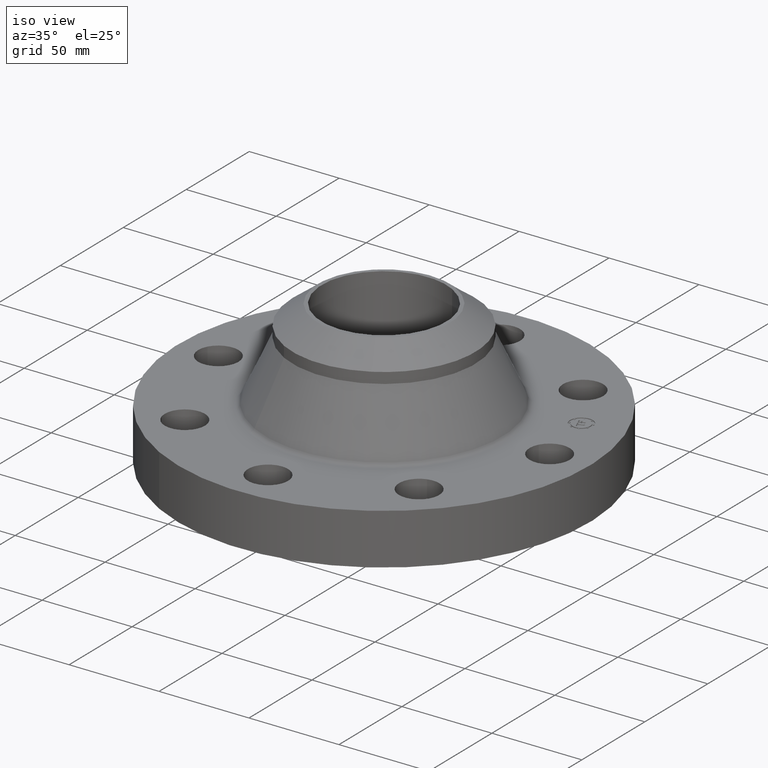
[diagram: clean part render]
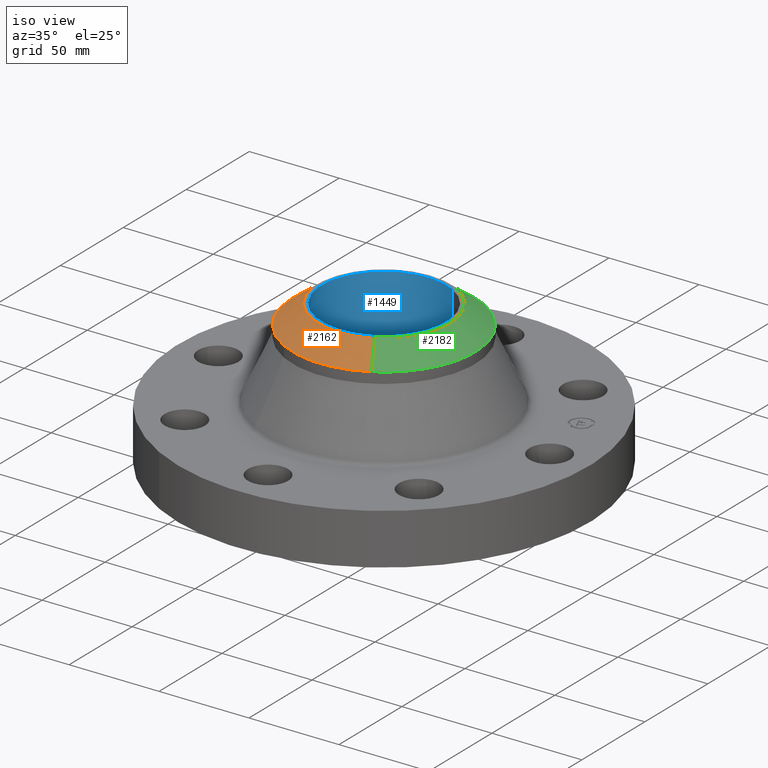
[diagram: same view with three faces highlighted in distinct colors, each labeled with its STEP entity id]
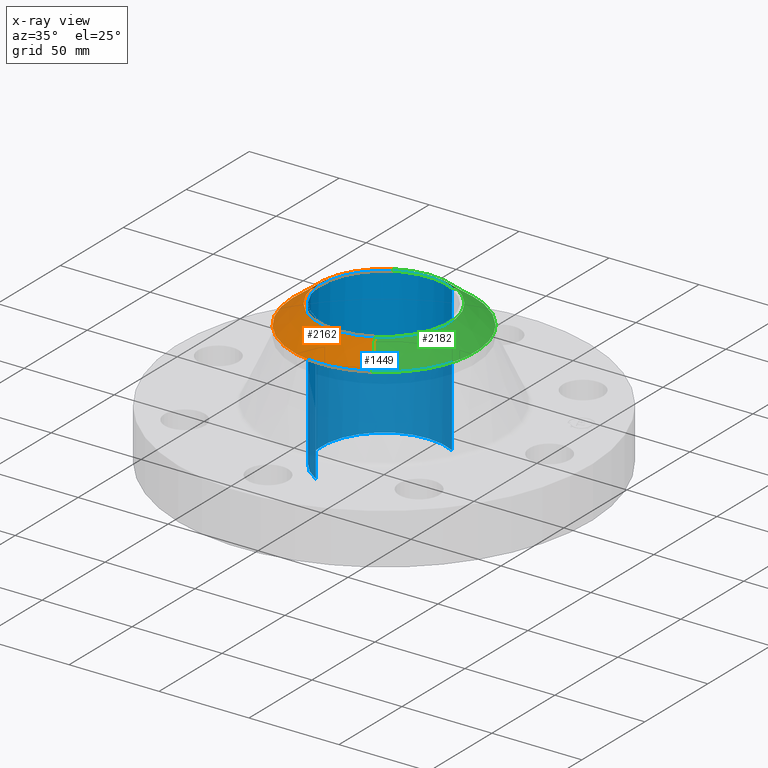
[diagram: x-ray of the same camera — body ghosted, the three highlighted faces saturated]
A machine part, iso view with three faces highlighted in distinct colors.
The next image is the same camera in x-ray (body ghosted, the three faces saturated) — at least one of them is partly hidden behind the body in this view.
Their STEP definitions:

[orange] entity #2162 — the highlighted conical surface has half-angle 52.5 deg.
#1478=AXIS2_PLACEMENT_3D('Circle Axis2P3D',#1476,#1477,$) ;
#1529=AXIS2_PLACEMENT_3D('Circle Axis2P3D',#1527,#1528,$) ;
#2121=AXIS2_PLACEMENT_3D('Circle Axis2P3D',#2119,#2120,$) ;
#2143=AXIS2_PLACEMENT_3D('Cone Axis2P3D',#2140,#2141,#2142) ;
#1473=CARTESIAN_POINT('Vertex',(-0.958851077212,-1.75516512379,2.70239948351)) ;
#1476=CARTESIAN_POINT('Axis2P3D Location',(0.,0.,2.70239948351)) ;
#1480=CARTESIAN_POINT('Vertex',(-0.958851077212,1.75516512379,2.70239948351)) ;
#1524=CARTESIAN_POINT('Vertex',(0.958851077213,-1.75516512379,2.70239948353)) ;
#1527=CARTESIAN_POINT('Axis2P3D Location',(0.,0.,2.70239948351)) ;
#2114=CARTESIAN_POINT('Vertex',(0.69168647707,-1.26612360355,3.13000000001)) ;
#2116=CARTESIAN_POINT('Vertex',(-0.691686477071,1.26612360355,3.13000000001)) ;
#2119=CARTESIAN_POINT('Axis2P3D Location',(0.,-1.93329167198E-011,3.13000000001)) ;
#2140=CARTESIAN_POINT('Axis2P3D Location',(0.,0.,3.13000000001)) ;
#2145=CARTESIAN_POINT('Line Origine',(0.825268777142,-1.51064436367,2.91619974177)) ;
#2150=CARTESIAN_POINT('Line Origine',(-0.825268777142,1.51064436367,2.91619974177)) ;
#1477=DIRECTION('Axis2P3D Direction',(-0.,0.,-0.0393700787402)) ;
#1528=DIRECTION('Axis2P3D Direction',(-0.,0.,-0.0393700787402)) ;
#2120=DIRECTION('Axis2P3D Direction',(0.,0.,-0.0393700787402)) ;
#2141=DIRECTION('Axis2P3D Direction',(-0.,-0.,-0.0393700787402)) ;
#2142=DIRECTION('Axis2P3D XDirection',(0.0188750212049,-0.0345504945626,0.)) ;
#2146=DIRECTION('Vector Direction',(0.014974561121,-0.02741075027,-0.023966985394)) ;
#2151=DIRECTION('Vector Direction',(-0.014974561121,0.02741075027,-0.023966985394)) ;
#2147=VECTOR('Line Direction',#2146,0.0393700787402) ;
#2152=VECTOR('Line Direction',#2151,0.0393700787402) ;
#2156=ORIENTED_EDGE('',*,*,#2149,.F.) ;
#2157=ORIENTED_EDGE('',*,*,#2123,.F.) ;
#2158=ORIENTED_EDGE('',*,*,#2154,.T.) ;
#2159=ORIENTED_EDGE('',*,*,#1482,.T.) ;
#2160=ORIENTED_EDGE('',*,*,#1531,.F.) ;
#2162=ADVANCED_FACE('PartBody',(#2161),#2144,.T.) ;
#1479=CIRCLE('generated circle',#1478,2.00000000001) ;
#1530=CIRCLE('generated circle',#1529,2.00000000001) ;
#2122=CIRCLE('generated circle',#2121,1.44274015748) ;
#2144=CONICAL_SURFACE('Cone',#2143,1.44274015749,0.916297857297) ;
#1482=EDGE_CURVE('',#1481,#1474,#1479,.F.) ;
#1531=EDGE_CURVE('',#1525,#1474,#1530,.T.) ;
#2123=EDGE_CURVE('',#2117,#2115,#2122,.F.) ;
#2149=EDGE_CURVE('',#2115,#1525,#2148,.T.) ;
#2154=EDGE_CURVE('',#2117,#1481,#2153,.T.) ;
#2155=EDGE_LOOP('',(#2156,#2157,#2158,#2159,#2160)) ;
#2161=FACE_OUTER_BOUND('',#2155,.T.) ;
#2148=LINE('Line',#2145,#2147) ;
#2153=LINE('Line',#2150,#2152) ;
#1474=VERTEX_POINT('',#1473) ;
#1481=VERTEX_POINT('',#1480) ;
#1525=VERTEX_POINT('',#1524) ;
#2115=VERTEX_POINT('',#2114) ;
#2117=VERTEX_POINT('',#2116) ;

[blue] entity #1449 — the highlighted cylindrical surface (partial cylindrical patch) has radius 34.6456 mm, axis along (-0, 0, -1).
#1127=AXIS2_PLACEMENT_3D('Circle Axis2P3D',#1125,#1126,$) ;
#1424=AXIS2_PLACEMENT_3D('Cylinder Axis2P3D',#1421,#1422,#1423) ;
#1120=CARTESIAN_POINT('Vertex',(0.653936434662,1.19702261443,-0.0624999999671)) ;
#1122=CARTESIAN_POINT('Vertex',(-0.653936434661,-1.19702261443,-0.0624999999671)) ;
#1125=CARTESIAN_POINT('Axis2P3D Location',(-1.39870617276E-016,-5.60489537547E-012,-0.0625000000003)) ;
#1392=CARTESIAN_POINT('Vertex',(0.653936434661,1.19702261443,3.12999999999)) ;
#1394=CARTESIAN_POINT('Vertex',(-0.653936434661,-1.19702261443,3.12999999999)) ;
#1397=CARTESIAN_POINT('Line Origine',(0.653936434661,1.19702261443,1.53375000001)) ;
#1402=CARTESIAN_POINT('Line Origine',(-0.653936434661,-1.19702261443,1.53375000001)) ;
#1421=CARTESIAN_POINT('Axis2P3D Location',(0.,0.,1.53375000001)) ;
#1427=CARTESIAN_POINT('Control Point',(-0.653936434662,-1.19702261443,3.12999999999)) ;
#1428=CARTESIAN_POINT('Control Point',(-0.841964307246,-1.09430251947,3.12999999999)) ;
#1429=CARTESIAN_POINT('Control Point',(-1.00982313635,-0.954663238073,3.12999999999)) ;
#1430=CARTESIAN_POINT('Control Point',(-1.1478148047,-0.783355499722,3.12999999999)) ;
#1431=CARTESIAN_POINT('Control Point',(-1.34919316982,-0.395864060159,3.12999999999)) ;
#1432=CARTESIAN_POINT('Control Point',(-1.3891016369,0.0390039381201,3.13)) ;
#1433=CARTESIAN_POINT('Control Point',(-1.36554361788,0.257711646016,3.13)) ;
#1434=CARTESIAN_POINT('Control Point',(-1.23394180088,0.674105478142,3.13)) ;
#1435=CARTESIAN_POINT('Control Point',(-0.954663238073,1.00982313635,3.13)) ;
#1436=CARTESIAN_POINT('Control Point',(-0.783355499723,1.1478148047,3.13)) ;
#1437=CARTESIAN_POINT('Control Point',(-0.39586406016,1.34919316982,3.13)) ;
#1438=CARTESIAN_POINT('Control Point',(0.0390039381195,1.3891016369,3.13000000001)) ;
#1439=CARTESIAN_POINT('Control Point',(0.257711646015,1.36554361788,3.13000000001)) ;
#1440=CARTESIAN_POINT('Control Point',(0.465908562078,1.29974270938,3.13000000001)) ;
#1441=CARTESIAN_POINT('Control Point',(0.653936434661,1.19702261443,3.13000000001)) ;
#1126=DIRECTION('Axis2P3D Direction',(0.,0.,-0.0393700787402)) ;
#1398=DIRECTION('Vector Direction',(0.,0.,-0.0393700787402)) ;
#1403=DIRECTION('Vector Direction',(0.,0.,-0.0393700787402)) ;
#1422=DIRECTION('Axis2P3D Direction',(-0.,0.,-0.0393700787402)) ;
#1423=DIRECTION('Axis2P3D XDirection',(-0.0188750212049,-0.0345504945626,0.)) ;
#1399=VECTOR('Line Direction',#1398,0.0393700787402) ;
#1404=VECTOR('Line Direction',#1403,0.0393700787402) ;
#1444=ORIENTED_EDGE('',*,*,#1442,.F.) ;
#1445=ORIENTED_EDGE('',*,*,#1406,.T.) ;
#1446=ORIENTED_EDGE('',*,*,#1129,.T.) ;
#1447=ORIENTED_EDGE('',*,*,#1401,.F.) ;
#1449=ADVANCED_FACE('PartBody',(#1448),#1425,.F.) ;
#1426=B_SPLINE_CURVE_WITH_KNOTS('',5,(#1427,#1428,#1429,#1430,#1431,#1432,#1433,#1434,#1435,#1436,#1437,#1438,#1439,#1440,#1441),.UNSPECIFIED.,.F.,.U.,(6,3,3,3,6),(-54.42118122,-27.21059061,3.5527136788E-015,27.21059061,54.42118122),.UNSPECIFIED.) ;
#1128=CIRCLE('generated circle',#1127,1.364) ;
#1425=CYLINDRICAL_SURFACE('generated cylinder',#1424,1.36400000001) ;
#1129=EDGE_CURVE('',#1123,#1121,#1128,.T.) ;
#1401=EDGE_CURVE('',#1393,#1121,#1400,.T.) ;
#1406=EDGE_CURVE('',#1395,#1123,#1405,.T.) ;
#1442=EDGE_CURVE('',#1395,#1393,#1426,.T.) ;
#1443=EDGE_LOOP('',(#1444,#1445,#1446,#1447)) ;
#1448=FACE_OUTER_BOUND('',#1443,.T.) ;
#1400=LINE('Line',#1397,#1399) ;
#1405=LINE('Line',#1402,#1404) ;
#1121=VERTEX_POINT('',#1120) ;
#1123=VERTEX_POINT('',#1122) ;
#1393=VERTEX_POINT('',#1392) ;
#1395=VERTEX_POINT('',#1394) ;

[green] entity #2182 — the highlighted conical surface has half-angle 52.5 deg.
#1485=AXIS2_PLACEMENT_3D('Circle Axis2P3D',#1483,#1484,$) ;
#2112=AXIS2_PLACEMENT_3D('Circle Axis2P3D',#2110,#2111,$) ;
#2173=AXIS2_PLACEMENT_3D('Cone Axis2P3D',#2170,#2171,#2172) ;
#1466=CARTESIAN_POINT('Vertex',(0.958851077214,1.75516512379,2.70239948351)) ;
#1480=CARTESIAN_POINT('Vertex',(-0.958851077212,1.75516512379,2.70239948351)) ;
#1483=CARTESIAN_POINT('Axis2P3D Location',(0.,0.,2.70239948351)) ;
#1509=CARTESIAN_POINT('Control Point',(0.958851077214,1.75516512379,2.70239948353)) ;
#1510=CARTESIAN_POINT('Control Point',(1.14679351396,1.65249170265,2.70239948353)) ;
#1511=CARTESIAN_POINT('Control Point',(1.32099316043,1.52466227264,2.70239948353)) ;
#1512=CARTESIAN_POINT('Control Point',(1.4769561817,1.37412459874,2.70239948353)) ;
#1513=CARTESIAN_POINT('Control Point',(1.74478500405,1.03499152465,2.70239948353)) ;
#1514=CARTESIAN_POINT('Control Point',(1.91399829862,0.637360563875,2.70239948352)) ;
#1515=CARTESIAN_POINT('Control Point',(1.97133488067,0.428318530719,2.70239948352)) ;
#1516=CARTESIAN_POINT('Control Point',(2.02866511935,-1.04241634698E-012,2.70239948352)) ;
#1517=CARTESIAN_POINT('Control Point',(1.97133488067,-0.428318530721,2.70239948352)) ;
#1518=CARTESIAN_POINT('Control Point',(1.91399829862,-0.637360563877,2.70239948352)) ;
#1519=CARTESIAN_POINT('Control Point',(1.74478500405,-1.03499152465,2.70239948352)) ;
#1520=CARTESIAN_POINT('Control Point',(1.4769561817,-1.37412459874,2.70239948351)) ;
#1521=CARTESIAN_POINT('Control Point',(1.32099316043,-1.52466227264,2.70239948351)) ;
#1522=CARTESIAN_POINT('Control Point',(1.14679351396,-1.65249170265,2.70239948351)) ;
#1523=CARTESIAN_POINT('Control Point',(0.958851077212,-1.75516512379,2.70239948351)) ;
#1524=CARTESIAN_POINT('Vertex',(0.958851077213,-1.75516512379,2.70239948353)) ;
#2110=CARTESIAN_POINT('Axis2P3D Location',(0.,-1.93329167198E-011,3.13000000001)) ;
#2114=CARTESIAN_POINT('Vertex',(0.69168647707,-1.26612360355,3.13000000001)) ;
#2116=CARTESIAN_POINT('Vertex',(-0.691686477071,1.26612360355,3.13000000001)) ;
#2145=CARTESIAN_POINT('Line Origine',(0.825268777142,-1.51064436367,2.91619974177)) ;
#2150=CARTESIAN_POINT('Line Origine',(-0.825268777142,1.51064436367,2.91619974177)) ;
#2170=CARTESIAN_POINT('Axis2P3D Location',(0.,0.,3.13000000001)) ;
#1484=DIRECTION('Axis2P3D Direction',(-0.,0.,-0.0393700787402)) ;
#2111=DIRECTION('Axis2P3D Direction',(0.,0.,-0.0393700787402)) ;
#2146=DIRECTION('Vector Direction',(0.014974561121,-0.02741075027,-0.023966985394)) ;
#2151=DIRECTION('Vector Direction',(-0.014974561121,0.02741075027,-0.023966985394)) ;
#2171=DIRECTION('Axis2P3D Direction',(-0.,-0.,-0.0393700787402)) ;
#2172=DIRECTION('Axis2P3D XDirection',(-0.0188750212049,0.0345504945626,0.)) ;
#2147=VECTOR('Line Direction',#2146,0.0393700787402) ;
#2152=VECTOR('Line Direction',#2151,0.0393700787402) ;
#2176=ORIENTED_EDGE('',*,*,#2154,.F.) ;
#2177=ORIENTED_EDGE('',*,*,#2118,.F.) ;
#2178=ORIENTED_EDGE('',*,*,#2149,.T.) ;
#2179=ORIENTED_EDGE('',*,*,#1526,.T.) ;
#2180=ORIENTED_EDGE('',*,*,#1487,.F.) ;
#2182=ADVANCED_FACE('PartBody',(#2181),#2174,.T.) ;
#1508=B_SPLINE_CURVE_WITH_KNOTS('',5,(#1509,#1510,#1511,#1512,#1513,#1514,#1515,#1516,#1517,#1518,#1519,#1520,#1521,#1522,#1523),.UNSPECIFIED.,.F.,.U.,(6,3,3,3,6),(-54.3964534015,-27.1982267007,3.5527136788E-015,27.1982267007,54.3964534015),.UNSPECIFIED.) ;
#1486=CIRCLE('generated circle',#1485,2.00000000001) ;
#2113=CIRCLE('generated circle',#2112,1.44274015748) ;
#2174=CONICAL_SURFACE('Cone',#2173,1.44274015749,0.916297857297) ;
#1487=EDGE_CURVE('',#1481,#1467,#1486,.T.) ;
#1526=EDGE_CURVE('',#1525,#1467,#1508,.F.) ;
#2118=EDGE_CURVE('',#2115,#2117,#2113,.F.) ;
#2149=EDGE_CURVE('',#2115,#1525,#2148,.T.) ;
#2154=EDGE_CURVE('',#2117,#1481,#2153,.T.) ;
#2175=EDGE_LOOP('',(#2176,#2177,#2178,#2179,#2180)) ;
#2181=FACE_OUTER_BOUND('',#2175,.T.) ;
#2148=LINE('Line',#2145,#2147) ;
#2153=LINE('Line',#2150,#2152) ;
#1467=VERTEX_POINT('',#1466) ;
#1481=VERTEX_POINT('',#1480) ;
#1525=VERTEX_POINT('',#1524) ;
#2115=VERTEX_POINT('',#2114) ;
#2117=VERTEX_POINT('',#2116) ;